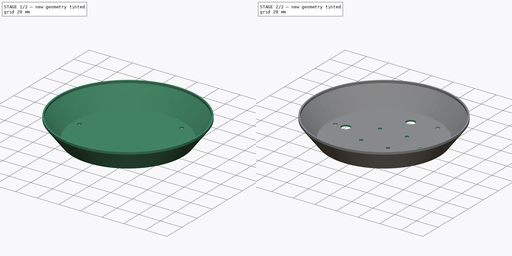
[diagram: build sequence overview — one tinted view per stage of 2, left to right]
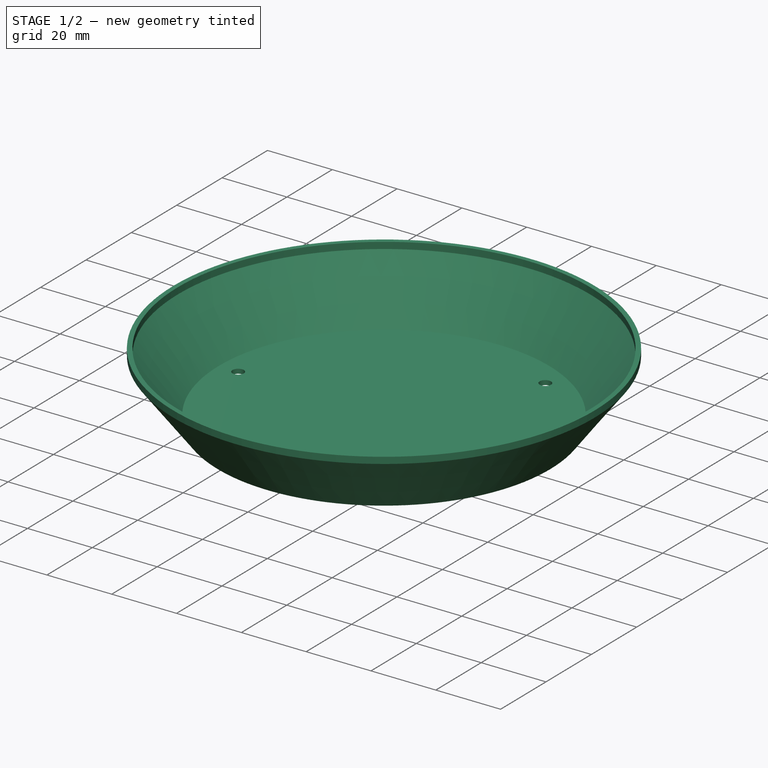
[diagram: stage 1 of 2 — iso view after this stage's code; geometry added in this stage tinted green]
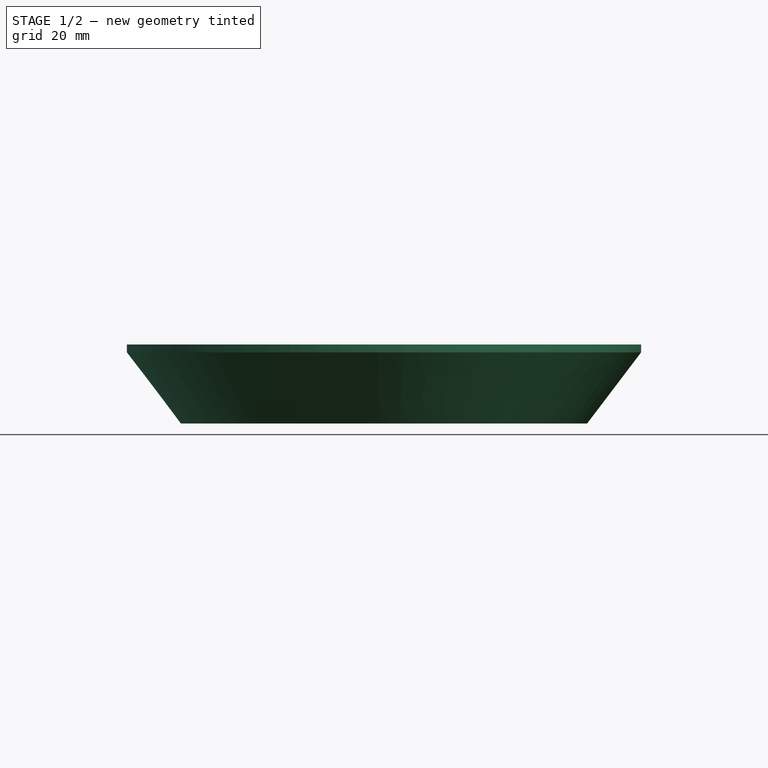
[diagram: stage 1 of 2 — front view after this stage's code; geometry added in this stage tinted green]
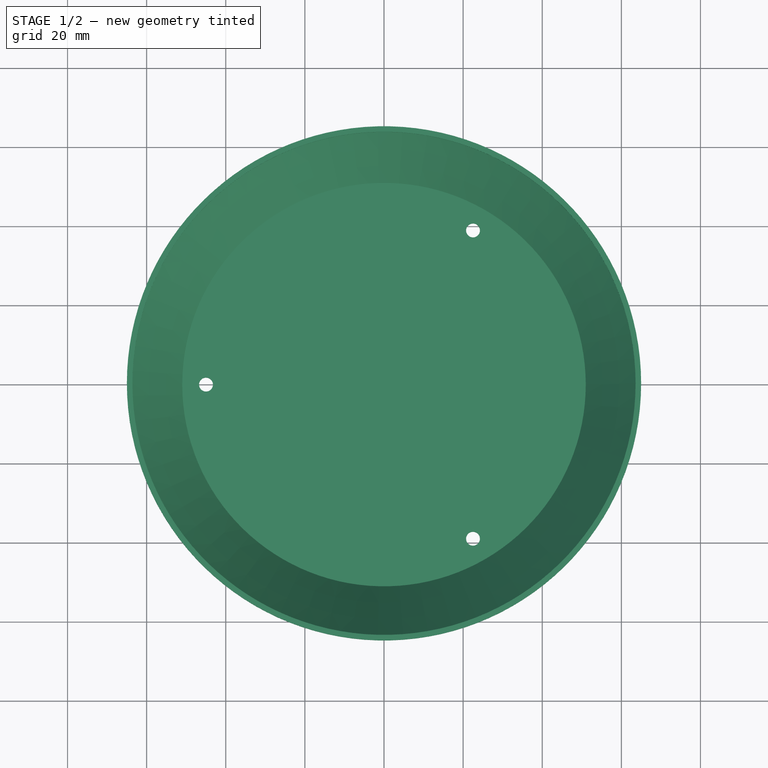
[diagram: stage 1 of 2 — top view after this stage's code; geometry added in this stage tinted green]
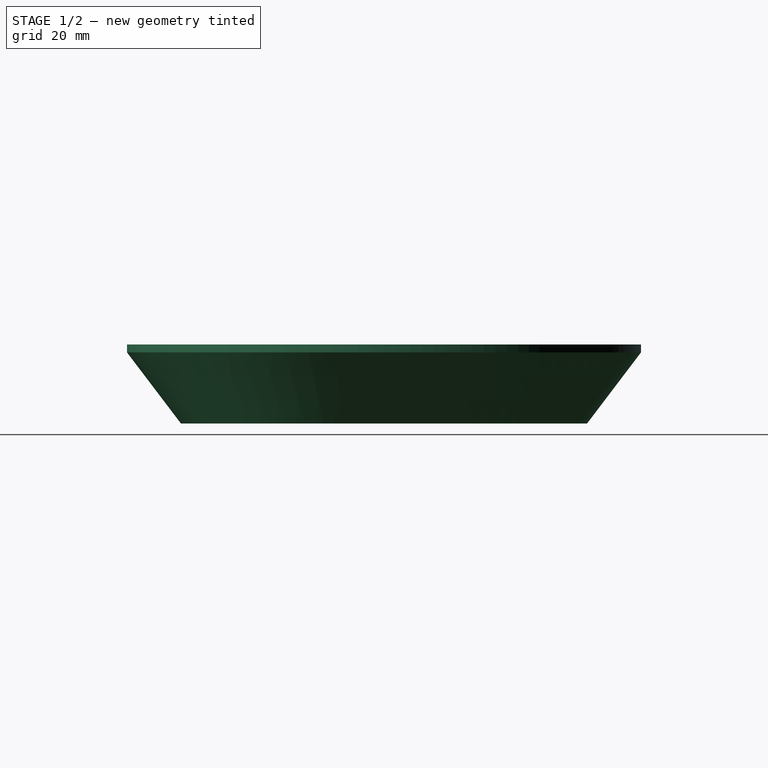
[diagram: stage 1 of 2 — right view after this stage's code; geometry added in this stage tinted green]
FCSTD DOCUMENT  (FreeCAD 0.19R24267 +148 (Git))
Label: Stevenson_screen_bottom_v2
License: All rights reserved
LicenseURL: http://en.wikipedia.org/wiki/All_rights_reserved
objects: Sketcher::SketchObject×3, PartDesign::Pocket×2, PartDesign::Revolution×1, PartDesign::Body×1
note: 10 computed .brp shape members not serialized (recipe doc carries the construction recipe); baked Part::Feature solids carry a one-line shape summary decoded from their .brp

FEATURE [Sketcher::SketchObject] Sketch
  FullyConstrained = true
  MapMode = 5
  Placement = pos=(0,0,0) rot=(1,0,0;1.5708rad)
  Support = -> [XZ_Plane]
  sketch-geometry (9):
    g0: LineSegment StartX=0 StartY=0 StartZ=0 EndX=51.3373 EndY=0 EndZ=0
    g1: LineSegment StartX=51.3373 StartY=0 StartZ=0 EndX=65 EndY=18 EndZ=0
    g2: LineSegment StartX=65 StartY=18 StartZ=0 EndX=65 EndY=20 EndZ=0
    g3: LineSegment StartX=65 StartY=20 StartZ=0 EndX=63.6 EndY=20 EndZ=0
    g4: LineSegment StartX=63.6 StartY=20 StartZ=0 EndX=63.6 EndY=18 EndZ=0
    g5: LineSegment StartX=63.6 StartY=18 StartZ=0 EndX=51 EndY=1.4 EndZ=0
    g6: LineSegment StartX=51 StartY=1.4 StartZ=0 EndX=0 EndY=1.4 EndZ=0
    g7: LineSegment StartX=0 StartY=1.4 StartZ=0 EndX=0 EndY=0 EndZ=0
    g8: LineSegment StartX=63.6 StartY=18 StartZ=0 EndX=65 EndY=18 EndZ=0
  constraints (25):
    c: Coincident(g0,g-1)
    c: Horizontal(g0)
    c: Coincident(g1,g0)
    c: Coincident(g2,g1)
    c: Vertical(g2)
    c: Coincident(g3,g2)
    c: Horizontal(g3)
    c: Coincident(g4,g3)
    c: Vertical(g4)
    c: Coincident(g5,g4)
    c: Coincident(g6,g5)
    c: PointOnObject(g6,g-2)
    c: Horizontal(g6)
    c: Coincident(g7,g6)
    c: Coincident(g7,g0)
    c: DistanceX(g6,g2) = 65
    c: DistanceY(g7,g7) = 1.4
    c: Equal(g3,g7)
    c: Parallel(g5,g1)
    c: DistanceY(g0,g2) = 20
    c: DistanceY(g2,g2) = 2
    c: Coincident(g8,g4)
    c: Coincident(g8,g1)
    c: Horizontal(g8)
    c: DistanceX(g6,g6) = 51
FEATURE [PartDesign::Revolution] Revolution
  Angle = 360
  Axis = (0,2e-16,1)
  Base = (0,0,0)
  Placement = pos=(0,0,0) rot=(1,0,0;1.5708rad)
  Profile = -> Sketch
  ReferenceAxis = -> Sketch [V_Axis]
  Reversed = true
FEATURE [Sketcher::SketchObject] Sketch003
  FullyConstrained = true
  MapMode = 5
  Placement = pos=(0,0,0) rot=(1,0,0;3.14159rad)
  sketch-geometry (6):
    g0: Circle CenterX=0 CenterY=0 CenterZ=0 NormalX=0 NormalY=0 NormalZ=1 AngleXU=0 Radius=45
    g1: Circle CenterX=22.5 CenterY=38.9711 CenterZ=0 NormalX=0 NormalY=0 NormalZ=1 AngleXU=0 Radius=1.75
    g2: Circle CenterX=-45 CenterY=0 CenterZ=0 NormalX=0 NormalY=0 NormalZ=1 AngleXU=0 Radius=1.75
    g3: Circle CenterX=22.5 CenterY=-38.9711 CenterZ=0 NormalX=0 NormalY=0 NormalZ=1 AngleXU=0 Radius=1.75
    g4: LineSegment StartX=22.5 StartY=38.9711 StartZ=0 EndX=0 EndY=0 EndZ=0
    g5: LineSegment StartX=0 StartY=0 StartZ=0 EndX=22.5 EndY=-38.9711 EndZ=0
  constraints (15):
    c: Coincident(g0,g-1)
    c: Radius(g0) = 45
    c: PointOnObject(g1,g0)
    c: PointOnObject(g2,g-1)
    c: PointOnObject(g3,g0)
    c: PointOnObject(g2,g0)
    c: Equal(g2,g1)
    c: Equal(g2,g3)
    c: Radius(g2) = 1.75
    c: Coincident(g4,g1)
    c: Coincident(g4,g-1)
    c: Coincident(g5,g-1)
    c: Coincident(g5,g3)
    c: Angle(g-1,g4) = 1.0472
    c: Angle(g5,g-1) = 1.0472
FEATURE [PartDesign::Pocket] Pocket001
  BaseFeature = -> Revolution
  Length = 1.5
  Length2 = 100
  Placement = pos=(0,0,0) rot=(1,0,0;1.5708rad)
  Profile = -> Sketch003
  Type = 0
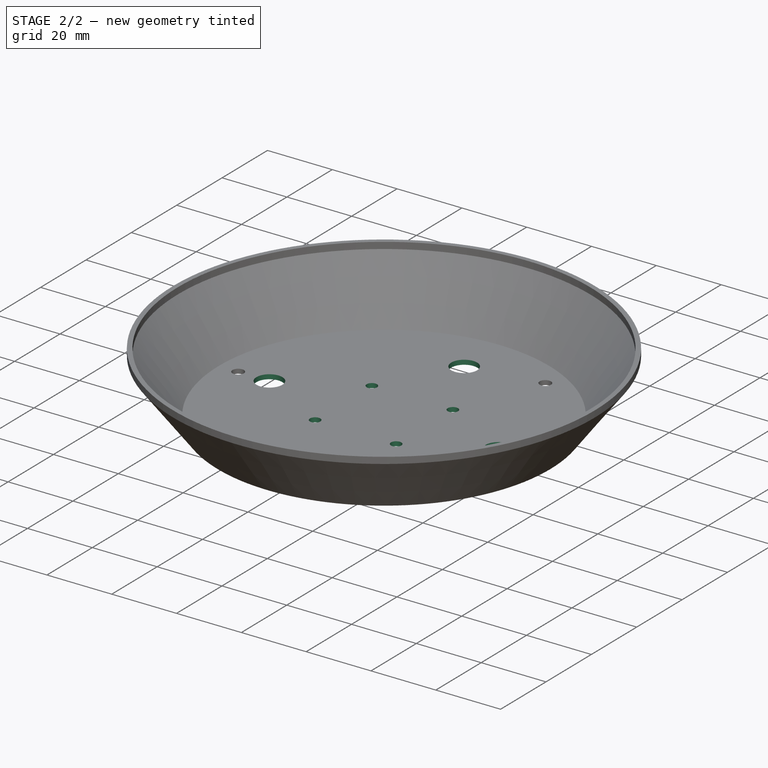
[diagram: stage 2 of 2 — iso view after this stage's code; geometry added in this stage tinted green]
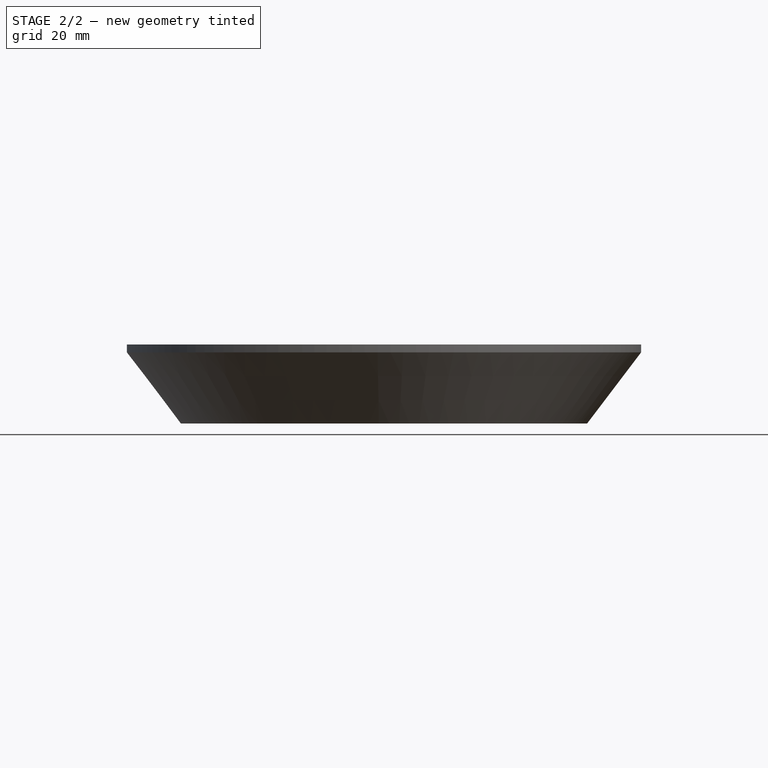
[diagram: stage 2 of 2 — front view after this stage's code; geometry added in this stage tinted green]
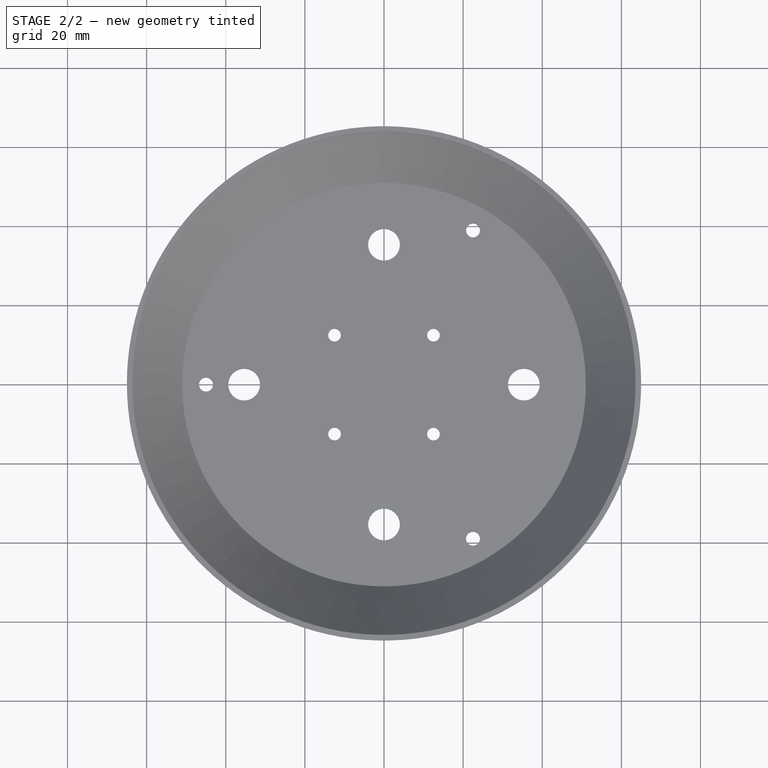
[diagram: stage 2 of 2 — top view after this stage's code; geometry added in this stage tinted green]
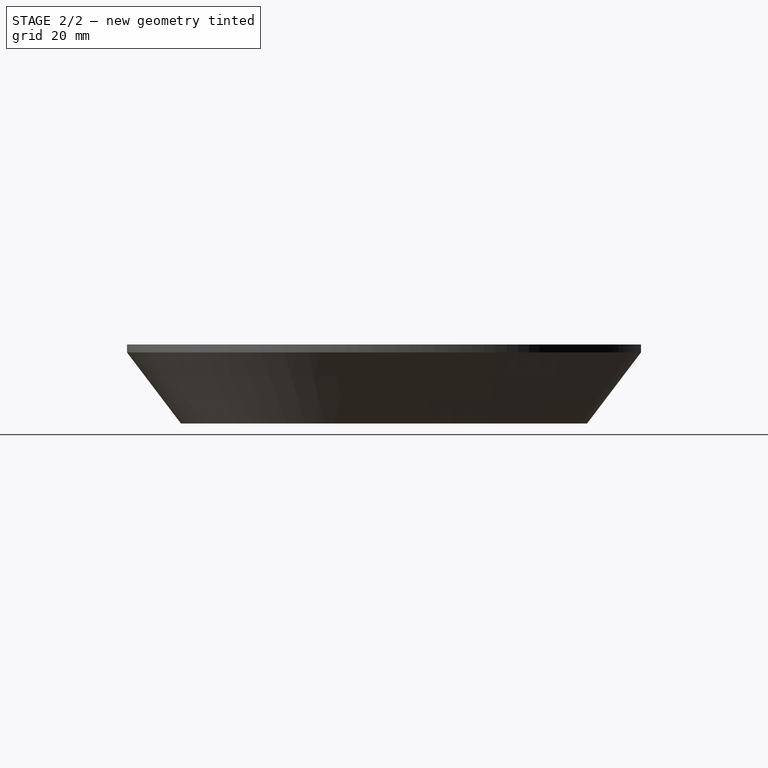
[diagram: stage 2 of 2 — right view after this stage's code; geometry added in this stage tinted green]
FEATURE [Sketcher::SketchObject] Sketch004
  FullyConstrained = true
  MapMode = 5
  Placement = pos=(0,0,0) rot=(1,0,0;3.14159rad)
  Support = -> [Pocket001]
  sketch-geometry (16):
    g0: LineSegment StartX=-12.5 StartY=12.5 StartZ=0 EndX=12.5 EndY=12.5 EndZ=0
    g1: LineSegment StartX=12.5 StartY=12.5 StartZ=0 EndX=12.5 EndY=-12.5 EndZ=0
    g2: LineSegment StartX=12.5 StartY=-12.5 StartZ=0 EndX=-12.5 EndY=-12.5 EndZ=0
    g3: LineSegment StartX=-12.5 StartY=-12.5 StartZ=0 EndX=-12.5 EndY=12.5 EndZ=0
    g4: Circle CenterX=12.5 CenterY=12.5 CenterZ=0 NormalX=0 NormalY=0 NormalZ=1 AngleXU=0 Radius=1.6
    g5: Circle CenterX=-12.5 CenterY=12.5 CenterZ=0 NormalX=0 NormalY=0 NormalZ=1 AngleXU=0 Radius=1.6
    g6: Circle CenterX=-12.5 CenterY=-12.5 CenterZ=0 NormalX=0 NormalY=0 NormalZ=1 AngleXU=0 Radius=1.6
    g7: Circle CenterX=12.5 CenterY=-12.5 CenterZ=0 NormalX=0 NormalY=0 NormalZ=1 AngleXU=0 Radius=1.6
    g8: LineSegment StartX=-35.3553 StartY=0 StartZ=0 EndX=0 EndY=35.3553 EndZ=0
    g9: LineSegment StartX=0 StartY=35.3553 StartZ=0 EndX=35.3553 EndY=0 EndZ=0
    g10: LineSegment StartX=35.3553 StartY=0 StartZ=0 EndX=0 EndY=-35.3553 EndZ=0
    g11: LineSegment StartX=0 StartY=-35.3553 StartZ=0 EndX=-35.3553 EndY=0 EndZ=0
    g12: Circle CenterX=0 CenterY=-35.3553 CenterZ=0 NormalX=0 NormalY=0 NormalZ=1 AngleXU=0 Radius=4
    g13: Circle CenterX=35.3553 CenterY=0 CenterZ=0 NormalX=0 NormalY=0 NormalZ=1 AngleXU=0 Radius=4
    g14: Circle CenterX=0 CenterY=35.3553 CenterZ=0 NormalX=0 NormalY=0 NormalZ=1 AngleXU=0 Radius=4
    g15: Circle CenterX=-35.3553 CenterY=0 CenterZ=0 NormalX=0 NormalY=0 NormalZ=1 AngleXU=0 Radius=4
  constraints (38):
    c: Coincident(g0,g1)
    c: Coincident(g1,g2)
    c: Coincident(g2,g3)
    c: Coincident(g3,g0)
    c: Horizontal(g2)
    c: Vertical(g1)
    c: Coincident(g4,g0)
    c: Coincident(g5,g0)
    c: Coincident(g6,g2)
    c: Coincident(g7,g1)
    c: PointOnObject(g8,g-1)
    c: PointOnObject(g8,g-2)
    c: Coincident(g9,g8)
    c: PointOnObject(g9,g-1)
    c: Coincident(g10,g9)
    c: PointOnObject(g10,g-2)
    c: Coincident(g11,g10)
    c: Coincident(g11,g8)
    c: Equal(g8,g9)
    c: Equal(g9,g10)
    c: Equal(g5,g7)
    c: Equal(g5,g6)
    c: Equal(g5,g4)
    c: Radius(g5) = 1.6
    c: Equal(g2,g1)
    c: DistanceX(g2,g2) = 25
    c: Symmetric(g5,g4,g-2)
    c: Symmetric(g6,g5,g-1)
    c: Distance(g11) = 50
    c: Angle(g8,g9) = 1.5708
    c: Coincident(g12,g10)
    c: Coincident(g13,g9)
    c: Coincident(g14,g8)
    c: Coincident(g15,g8)
    c: Equal(g15,g12)
    c: Equal(g15,g14)
    c: Equal(g15,g13)
    c: Radius(g15) = 4
FEATURE [PartDesign::Pocket] Pocket
  BaseFeature = -> Pocket001
  Length = 1.5
  Length2 = 100
  Placement = pos=(0,0,0) rot=(1,0,0;1.5708rad)
  Profile = -> Sketch004
  Type = 0
FEATURE [PartDesign::Body] Body
  Group = -> [Sketch,Revolution,Sketch003,Pocket001,Sketch004,Pocket]
  Origin = -> Origin
  Tip = -> Pocket
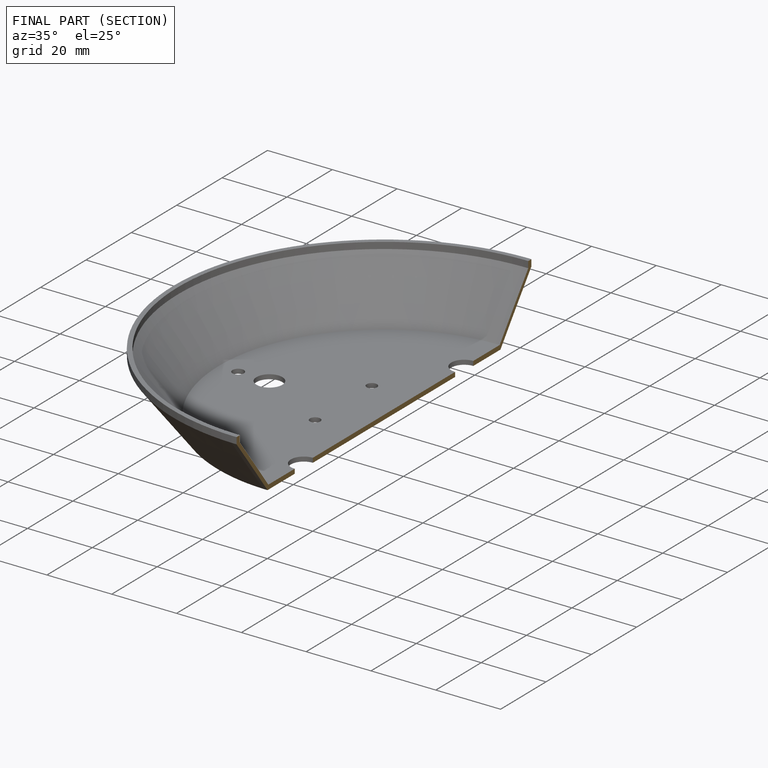
[diagram: finished part — half-section view (interior)]
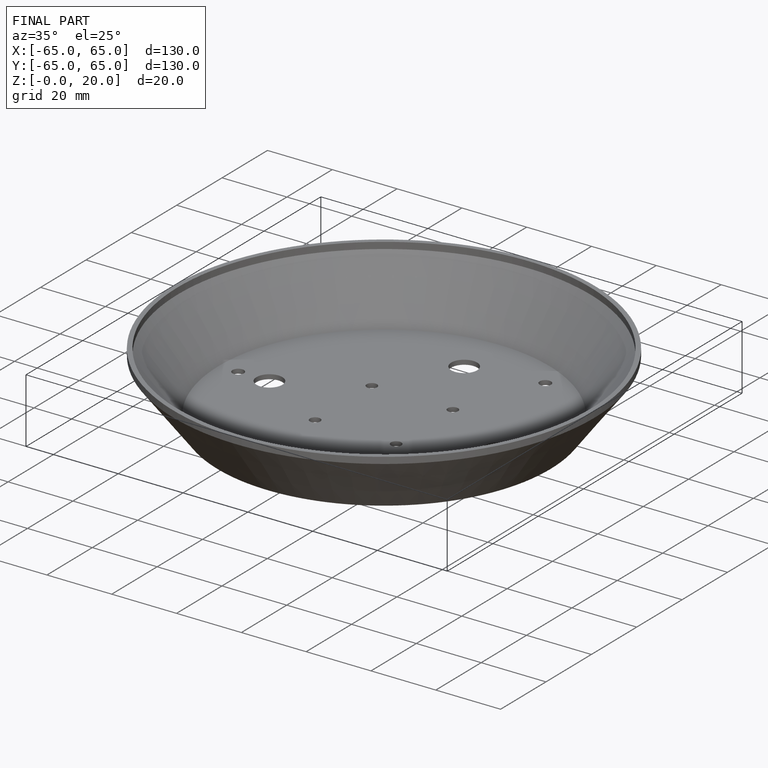
[diagram: finished part — iso view with bounding-box wireframe]
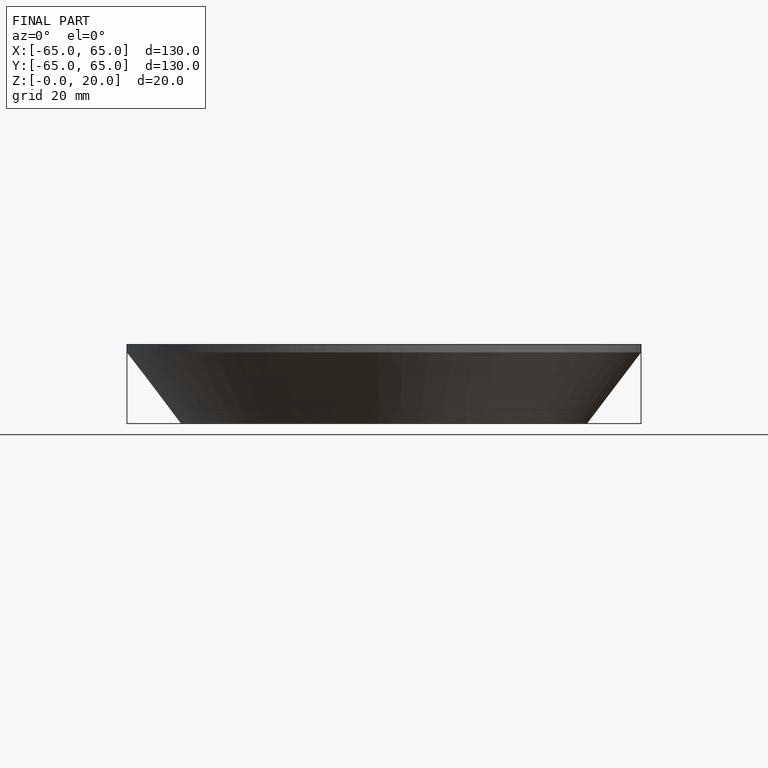
[diagram: finished part — front view with bounding-box wireframe]
